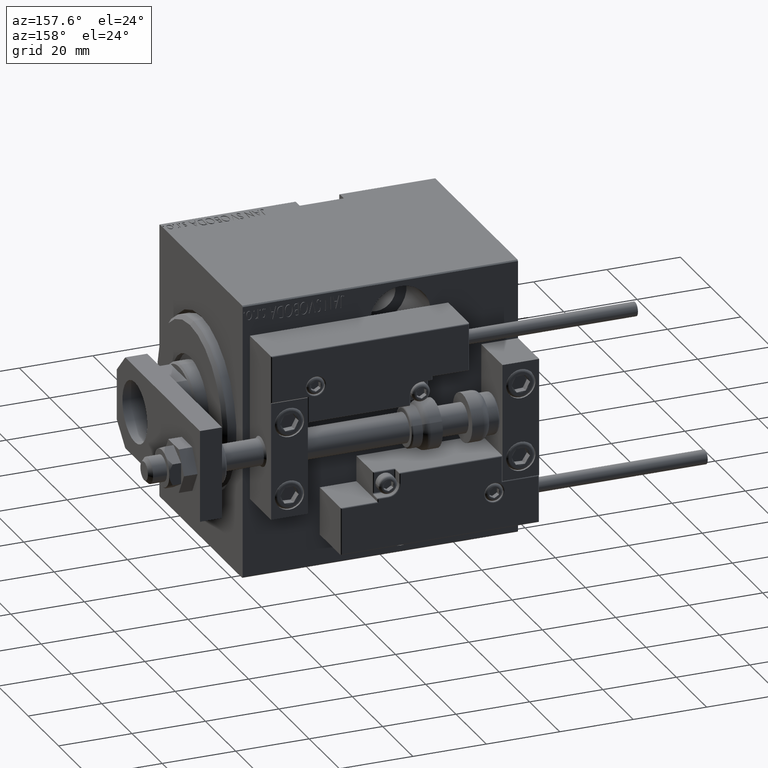
[diagram: clean part render]
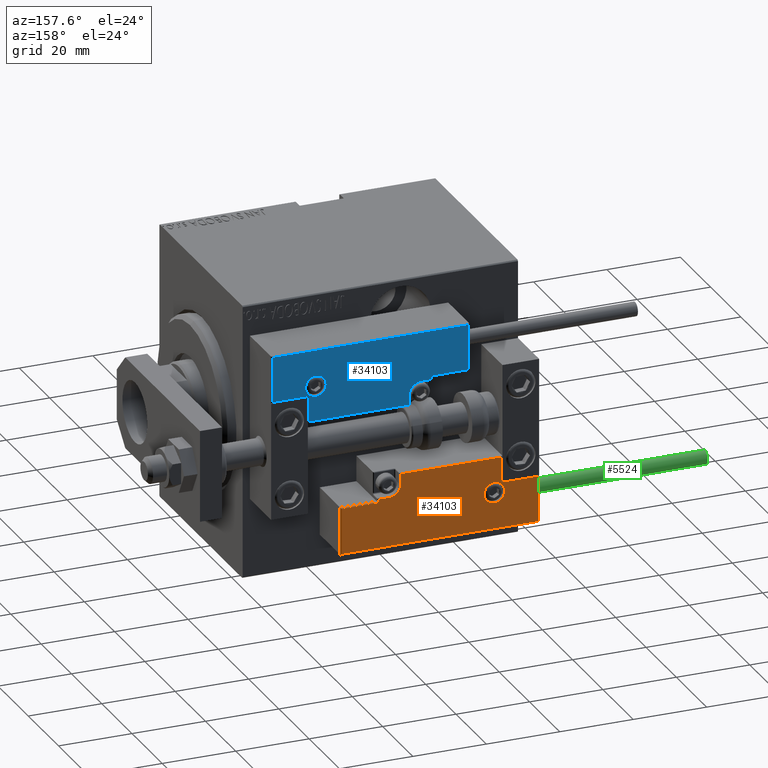
[diagram: same view with three faces highlighted in distinct colors, each labeled with its STEP entity id]
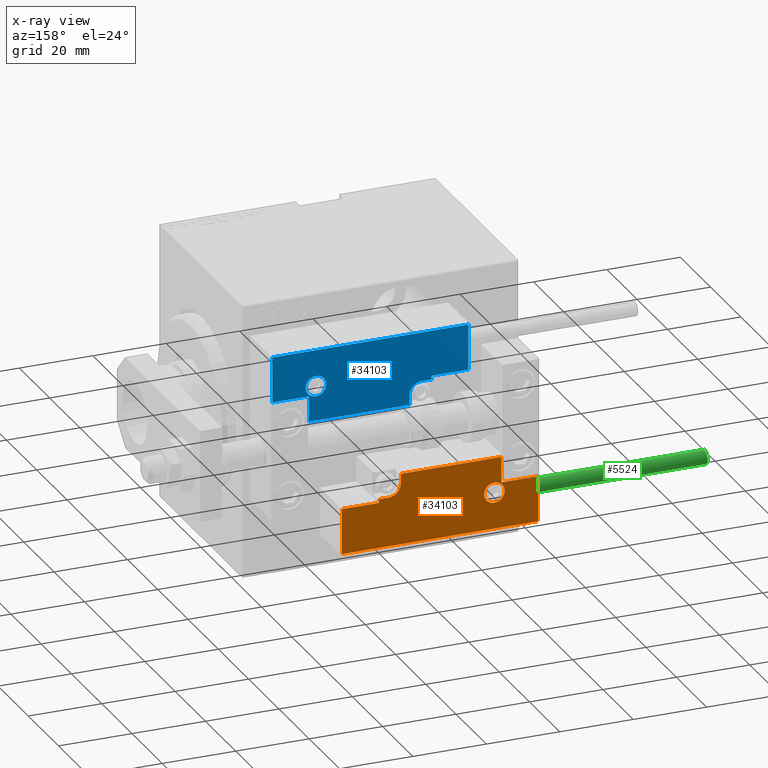
[diagram: x-ray of the same camera — body ghosted, the three highlighted faces saturated]
A machine part, auxiliary view with three faces highlighted in distinct colors.
The next image is the same camera in x-ray (body ghosted, the three faces saturated) — at least one of them is partly hidden behind the body in this view.
Their STEP definitions:

[orange] entity #34103 — the highlighted planar face has unit normal (-0, 1, 0).
#643 = LINE ( 'NONE', #16136, #30499 ) ;
#777 = LINE ( 'NONE', #16022, #14081 ) ;
#1418 = CARTESIAN_POINT ( 'NONE',  ( 16.69999999999999929, 7.300000000000009592, 14.00000000000000000 ) ) ;
#1567 = DIRECTION ( 'NONE',  ( 0.000000000000000000, -0.000000000000000000, -1.000000000000000000 ) ) ;
#2433 = CARTESIAN_POINT ( 'NONE',  ( 10.69999999999999929, 3.000000000000003109, 14.00000000000000000 ) ) ;
#2657 = EDGE_CURVE ( 'NONE', #7735, #7170, #11064, .T. ) ;
#2773 = VECTOR ( 'NONE', #7342, 1000.000000000000000 ) ;
#2995 = ORIENTED_EDGE ( 'NONE', *, *, #23505, .T. ) ;
#3315 = EDGE_CURVE ( 'NONE', #17456, #13904, #29964, .T. ) ;
#3720 = DIRECTION ( 'NONE',  ( 1.000000000000000000, 0.000000000000000000, 0.000000000000000000 ) ) ;
#3875 = EDGE_CURVE ( 'NONE', #46154, #44638, #26856, .T. ) ;
#5206 = CARTESIAN_POINT ( 'NONE',  ( 16.69999999999999929, 6.300000000000003375, 14.00000000000000000 ) ) ;
#5769 = AXIS2_PLACEMENT_3D ( 'NONE', #21556, #44849, #3720 ) ;
#6592 = CARTESIAN_POINT ( 'NONE',  ( -16.69999999999999218, 0.3000000000000032085, 14.00000000000000000 ) ) ;
#7170 = VERTEX_POINT ( 'NONE', #42057 ) ;
#7342 = DIRECTION ( 'NONE',  ( 9.912705577010318647E-16, 1.000000000000000000, 0.000000000000000000 ) ) ;
#7735 = VERTEX_POINT ( 'NONE', #15135 ) ;
#7762 = EDGE_CURVE ( 'NONE', #13904, #18127, #44464, .T. ) ;
#8341 = CARTESIAN_POINT ( 'NONE',  ( 17.00000000000000000, 6.300000000000003375, 14.00000000000000000 ) ) ;
#8709 = EDGE_CURVE ( 'NONE', #16766, #48866, #32841, .T. ) ;
#9475 = ORIENTED_EDGE ( 'NONE', *, *, #3875, .T. ) ;
#9710 = CARTESIAN_POINT ( 'NONE',  ( 26.70000000000006324, 20.00000000000001776, 14.00000000000000000 ) ) ;
#11064 = CIRCLE ( 'NONE', #47836, 2.800000000000000266 ) ;
#11109 = DIRECTION ( 'NONE',  ( -1.000000000000000000, 6.424901762877063495E-17, -0.000000000000000000 ) ) ;
#12894 = CARTESIAN_POINT ( 'NONE',  ( 26.70000000000006324, 7.300000000000007816, 14.00000000000000000 ) ) ;
#13714 = LINE ( 'NONE', #9710, #19141 ) ;
#13904 = VERTEX_POINT ( 'NONE', #22230 ) ;
#13958 = VERTEX_POINT ( 'NONE', #41289 ) ;
#14081 = VECTOR ( 'NONE', #49001, 1000.000000000000000 ) ;
#14263 = AXIS2_PLACEMENT_3D ( 'NONE', #36473, #43229, #39238 ) ;
#15135 = CARTESIAN_POINT ( 'NONE',  ( -17.59999999999994813, 9.800000000000004263, 14.00000000000000000 ) ) ;
#15165 = EDGE_CURVE ( 'NONE', #7170, #7735, #27336, .T. ) ;
#15761 = EDGE_CURVE ( 'NONE', #39027, #16766, #643, .T. ) ;
#15892 = DIRECTION ( 'NONE',  ( -8.006416042969869188E-16, -1.000000000000000000, 0.000000000000000000 ) ) ;
#16022 = CARTESIAN_POINT ( 'NONE',  ( -16.69999999999999218, 3.252606517456513302E-15, 14.00000000000000000 ) ) ;
#16136 = CARTESIAN_POINT ( 'NONE',  ( -26.69999999999994600, 7.000000000000005329, 14.00000000000000000 ) ) ;
#16766 = VERTEX_POINT ( 'NONE', #47016 ) ;
#17456 = VERTEX_POINT ( 'NONE', #6592 ) ;
#18127 = VERTEX_POINT ( 'NONE', #2433 ) ;
#18146 = CARTESIAN_POINT ( 'NONE',  ( 10.69999999999999929, 3.000000000000003109, 14.00000000000000000 ) ) ;
#18878 = VECTOR ( 'NONE', #24831, 1000.000000000000000 ) ;
#19064 = VECTOR ( 'NONE', #33453, 1000.000000000000000 ) ;
#19123 = DIRECTION ( 'NONE',  ( 1.000000000000000000, 0.000000000000000000, 0.000000000000000000 ) ) ;
#19141 = VECTOR ( 'NONE', #36503, 1000.000000000000000 ) ;
#19230 = ORIENTED_EDGE ( 'NONE', *, *, #2657, .T. ) ;
#19637 = EDGE_LOOP ( 'NONE', ( #35657, #36449, #24720, #44991, #27261, #9475, #2995, #30971, #24636, #40219, #27434 ) ) ;
#20432 = FACE_BOUND ( 'NONE', #30582, .T. ) ;
#20685 = FACE_OUTER_BOUND ( 'NONE', #19637, .T. ) ;
#21030 = DIRECTION ( 'NONE',  ( 1.000000000000000000, 0.000000000000000000, 0.000000000000000000 ) ) ;
#21270 = ORIENTED_EDGE ( 'NONE', *, *, #15165, .T. ) ;
#21556 = CARTESIAN_POINT ( 'NONE',  ( -14.79999999999994920, 9.800000000000004263, 14.00000000000000000 ) ) ;
#22164 = DIRECTION ( 'NONE',  ( 1.000000000000000000, -0.000000000000000000, 0.000000000000000000 ) ) ;
#22230 = CARTESIAN_POINT ( 'NONE',  ( 10.69999999999999929, 0.3000000000000032085, 14.00000000000000000 ) ) ;
#22644 = CIRCLE ( 'NONE', #41868, 3.299999999999997158 ) ;
#22661 = CARTESIAN_POINT ( 'NONE',  ( -16.69999999999999218, 7.300000000000003375, 14.00000000000000000 ) ) ;
#23505 = EDGE_CURVE ( 'NONE', #44638, #46635, #28600, .T. ) ;
#23945 = PLANE ( 'NONE',  #14263 ) ;
#24062 = EDGE_CURVE ( 'NONE', #46635, #34782, #13714, .T. ) ;
#24296 = DIRECTION ( 'NONE',  ( 0.000000000000000000, -0.000000000000000000, -1.000000000000000000 ) ) ;
#24636 = ORIENTED_EDGE ( 'NONE', *, *, #46719, .T. ) ;
#24720 = ORIENTED_EDGE ( 'NONE', *, *, #7762, .T. ) ;
#24831 = DIRECTION ( 'NONE',  ( 1.000000000000000000, -1.734723475976796001E-16, 0.000000000000000000 ) ) ;
#25880 = CARTESIAN_POINT ( 'NONE',  ( -26.99999999999993605, 19.70000000000002061, 14.00000000000000000 ) ) ;
#26633 = LINE ( 'NONE', #8341, #34080 ) ;
#26856 = LINE ( 'NONE', #34871, #2773 ) ;
#27261 = ORIENTED_EDGE ( 'NONE', *, *, #43625, .T. ) ;
#27336 = CIRCLE ( 'NONE', #5769, 2.800000000000000266 ) ;
#27434 = ORIENTED_EDGE ( 'NONE', *, *, #8709, .T. ) ;
#28600 = LINE ( 'NONE', #48121, #18878 ) ;
#29964 = LINE ( 'NONE', #37962, #42718 ) ;
#30062 = DIRECTION ( 'NONE',  ( 1.000000000000000000, -1.734723475976815230E-16, 0.000000000000000000 ) ) ;
#30499 = VECTOR ( 'NONE', #15892, 1000.000000000000000 ) ;
#30582 = EDGE_LOOP ( 'NONE', ( #21270, #19230 ) ) ;
#30971 = ORIENTED_EDGE ( 'NONE', *, *, #24062, .T. ) ;
#31781 = EDGE_CURVE ( 'NONE', #18127, #13958, #22644, .T. ) ;
#32542 = CARTESIAN_POINT ( 'NONE',  ( 26.70000000000006324, 19.70000000000001705, 14.00000000000000000 ) ) ;
#32841 = LINE ( 'NONE', #37576, #49013 ) ;
#33453 = DIRECTION ( 'NONE',  ( -0.000000000000000000, 1.000000000000000000, -0.000000000000000000 ) ) ;
#34080 = VECTOR ( 'NONE', #37919, 1000.000000000000000 ) ;
#34103 = ADVANCED_FACE ( 'NONE', ( #20432, #20685 ), #23945, .T. ) ;
#34175 = CARTESIAN_POINT ( 'NONE',  ( -14.79999999999994920, 9.800000000000004263, 14.00000000000000000 ) ) ;
#34782 = VERTEX_POINT ( 'NONE', #32542 ) ;
#34871 = CARTESIAN_POINT ( 'NONE',  ( 16.69999999999999929, 7.000000000000009770, 14.00000000000000000 ) ) ;
#35657 = ORIENTED_EDGE ( 'NONE', *, *, #44297, .T. ) ;
#35840 = CARTESIAN_POINT ( 'NONE',  ( 13.99999999999999822, 3.000000000000002665, 14.00000000000000000 ) ) ;
#35967 = CARTESIAN_POINT ( 'NONE',  ( -26.69999999999993534, 19.70000000000002061, 14.00000000000000000 ) ) ;
#36449 = ORIENTED_EDGE ( 'NONE', *, *, #3315, .T. ) ;
#36473 = CARTESIAN_POINT ( 'NONE',  ( 0.000000000000000000, 0.000000000000000000, 14.00000000000000000 ) ) ;
#36503 = DIRECTION ( 'NONE',  ( 0.000000000000000000, 1.000000000000000000, -0.000000000000000000 ) ) ;
#37576 = CARTESIAN_POINT ( 'NONE',  ( -16.99999999999999289, 7.300000000000003375, 14.00000000000000000 ) ) ;
#37919 = DIRECTION ( 'NONE',  ( 1.000000000000000000, 5.782411586589357639E-16, -0.000000000000000000 ) ) ;
#37962 = CARTESIAN_POINT ( 'NONE',  ( 11.00000000000000000, 0.3000000000000032085, 14.00000000000000000 ) ) ;
#39027 = VERTEX_POINT ( 'NONE', #35967 ) ;
#39238 = DIRECTION ( 'NONE',  ( 1.000000000000000000, 0.000000000000000000, 0.000000000000000000 ) ) ;
#40219 = ORIENTED_EDGE ( 'NONE', *, *, #15761, .T. ) ;
#41289 = CARTESIAN_POINT ( 'NONE',  ( 13.99999999999999822, 6.300000000000001599, 14.00000000000000000 ) ) ;
#41387 = VECTOR ( 'NONE', #11109, 1000.000000000000000 ) ;
#41868 = AXIS2_PLACEMENT_3D ( 'NONE', #35840, #24296, #21030 ) ;
#42057 = CARTESIAN_POINT ( 'NONE',  ( -11.99999999999994849, 9.800000000000004263, 14.00000000000000000 ) ) ;
#42718 = VECTOR ( 'NONE', #22164, 1000.000000000000000 ) ;
#43229 = DIRECTION ( 'NONE',  ( -0.000000000000000000, 0.000000000000000000, 1.000000000000000000 ) ) ;
#43625 = EDGE_CURVE ( 'NONE', #13958, #46154, #26633, .T. ) ;
#44297 = EDGE_CURVE ( 'NONE', #48866, #17456, #777, .T. ) ;
#44464 = LINE ( 'NONE', #18146, #19064 ) ;
#44638 = VERTEX_POINT ( 'NONE', #1418 ) ;
#44849 = DIRECTION ( 'NONE',  ( 0.000000000000000000, -0.000000000000000000, -1.000000000000000000 ) ) ;
#44991 = ORIENTED_EDGE ( 'NONE', *, *, #31781, .T. ) ;
#46154 = VERTEX_POINT ( 'NONE', #5206 ) ;
#46635 = VERTEX_POINT ( 'NONE', #12894 ) ;
#46719 = EDGE_CURVE ( 'NONE', #34782, #39027, #48674, .T. ) ;
#47016 = CARTESIAN_POINT ( 'NONE',  ( -26.69999999999994600, 7.300000000000005151, 14.00000000000000000 ) ) ;
#47836 = AXIS2_PLACEMENT_3D ( 'NONE', #34175, #1567, #19123 ) ;
#48121 = CARTESIAN_POINT ( 'NONE',  ( 27.00000000000006395, 7.300000000000007816, 14.00000000000000000 ) ) ;
#48674 = LINE ( 'NONE', #25880, #41387 ) ;
#48866 = VERTEX_POINT ( 'NONE', #22661 ) ;
#49001 = DIRECTION ( 'NONE',  ( 0.000000000000000000, -1.000000000000000000, 0.000000000000000000 ) ) ;
#49013 = VECTOR ( 'NONE', #30062, 1000.000000000000000 ) ;

[blue] entity #34103 — the highlighted planar face has unit normal (0, 1, -0).
#643 = LINE ( 'NONE', #16136, #30499 ) ;
#777 = LINE ( 'NONE', #16022, #14081 ) ;
#1418 = CARTESIAN_POINT ( 'NONE',  ( 16.69999999999999929, 7.300000000000009592, 14.00000000000000000 ) ) ;
#1567 = DIRECTION ( 'NONE',  ( 0.000000000000000000, -0.000000000000000000, -1.000000000000000000 ) ) ;
#2433 = CARTESIAN_POINT ( 'NONE',  ( 10.69999999999999929, 3.000000000000003109, 14.00000000000000000 ) ) ;
#2657 = EDGE_CURVE ( 'NONE', #7735, #7170, #11064, .T. ) ;
#2773 = VECTOR ( 'NONE', #7342, 1000.000000000000000 ) ;
#2995 = ORIENTED_EDGE ( 'NONE', *, *, #23505, .T. ) ;
#3315 = EDGE_CURVE ( 'NONE', #17456, #13904, #29964, .T. ) ;
#3720 = DIRECTION ( 'NONE',  ( 1.000000000000000000, 0.000000000000000000, 0.000000000000000000 ) ) ;
#3875 = EDGE_CURVE ( 'NONE', #46154, #44638, #26856, .T. ) ;
#5206 = CARTESIAN_POINT ( 'NONE',  ( 16.69999999999999929, 6.300000000000003375, 14.00000000000000000 ) ) ;
#5769 = AXIS2_PLACEMENT_3D ( 'NONE', #21556, #44849, #3720 ) ;
#6592 = CARTESIAN_POINT ( 'NONE',  ( -16.69999999999999218, 0.3000000000000032085, 14.00000000000000000 ) ) ;
#7170 = VERTEX_POINT ( 'NONE', #42057 ) ;
#7342 = DIRECTION ( 'NONE',  ( 9.912705577010318647E-16, 1.000000000000000000, 0.000000000000000000 ) ) ;
#7735 = VERTEX_POINT ( 'NONE', #15135 ) ;
#7762 = EDGE_CURVE ( 'NONE', #13904, #18127, #44464, .T. ) ;
#8341 = CARTESIAN_POINT ( 'NONE',  ( 17.00000000000000000, 6.300000000000003375, 14.00000000000000000 ) ) ;
#8709 = EDGE_CURVE ( 'NONE', #16766, #48866, #32841, .T. ) ;
#9475 = ORIENTED_EDGE ( 'NONE', *, *, #3875, .T. ) ;
#9710 = CARTESIAN_POINT ( 'NONE',  ( 26.70000000000006324, 20.00000000000001776, 14.00000000000000000 ) ) ;
#11064 = CIRCLE ( 'NONE', #47836, 2.800000000000000266 ) ;
#11109 = DIRECTION ( 'NONE',  ( -1.000000000000000000, 6.424901762877063495E-17, -0.000000000000000000 ) ) ;
#12894 = CARTESIAN_POINT ( 'NONE',  ( 26.70000000000006324, 7.300000000000007816, 14.00000000000000000 ) ) ;
#13714 = LINE ( 'NONE', #9710, #19141 ) ;
#13904 = VERTEX_POINT ( 'NONE', #22230 ) ;
#13958 = VERTEX_POINT ( 'NONE', #41289 ) ;
#14081 = VECTOR ( 'NONE', #49001, 1000.000000000000000 ) ;
#14263 = AXIS2_PLACEMENT_3D ( 'NONE', #36473, #43229, #39238 ) ;
#15135 = CARTESIAN_POINT ( 'NONE',  ( -17.59999999999994813, 9.800000000000004263, 14.00000000000000000 ) ) ;
#15165 = EDGE_CURVE ( 'NONE', #7170, #7735, #27336, .T. ) ;
#15761 = EDGE_CURVE ( 'NONE', #39027, #16766, #643, .T. ) ;
#15892 = DIRECTION ( 'NONE',  ( -8.006416042969869188E-16, -1.000000000000000000, 0.000000000000000000 ) ) ;
#16022 = CARTESIAN_POINT ( 'NONE',  ( -16.69999999999999218, 3.252606517456513302E-15, 14.00000000000000000 ) ) ;
#16136 = CARTESIAN_POINT ( 'NONE',  ( -26.69999999999994600, 7.000000000000005329, 14.00000000000000000 ) ) ;
#16766 = VERTEX_POINT ( 'NONE', #47016 ) ;
#17456 = VERTEX_POINT ( 'NONE', #6592 ) ;
#18127 = VERTEX_POINT ( 'NONE', #2433 ) ;
#18146 = CARTESIAN_POINT ( 'NONE',  ( 10.69999999999999929, 3.000000000000003109, 14.00000000000000000 ) ) ;
#18878 = VECTOR ( 'NONE', #24831, 1000.000000000000000 ) ;
#19064 = VECTOR ( 'NONE', #33453, 1000.000000000000000 ) ;
#19123 = DIRECTION ( 'NONE',  ( 1.000000000000000000, 0.000000000000000000, 0.000000000000000000 ) ) ;
#19141 = VECTOR ( 'NONE', #36503, 1000.000000000000000 ) ;
#19230 = ORIENTED_EDGE ( 'NONE', *, *, #2657, .T. ) ;
#19637 = EDGE_LOOP ( 'NONE', ( #35657, #36449, #24720, #44991, #27261, #9475, #2995, #30971, #24636, #40219, #27434 ) ) ;
#20432 = FACE_BOUND ( 'NONE', #30582, .T. ) ;
#20685 = FACE_OUTER_BOUND ( 'NONE', #19637, .T. ) ;
#21030 = DIRECTION ( 'NONE',  ( 1.000000000000000000, 0.000000000000000000, 0.000000000000000000 ) ) ;
#21270 = ORIENTED_EDGE ( 'NONE', *, *, #15165, .T. ) ;
#21556 = CARTESIAN_POINT ( 'NONE',  ( -14.79999999999994920, 9.800000000000004263, 14.00000000000000000 ) ) ;
#22164 = DIRECTION ( 'NONE',  ( 1.000000000000000000, -0.000000000000000000, 0.000000000000000000 ) ) ;
#22230 = CARTESIAN_POINT ( 'NONE',  ( 10.69999999999999929, 0.3000000000000032085, 14.00000000000000000 ) ) ;
#22644 = CIRCLE ( 'NONE', #41868, 3.299999999999997158 ) ;
#22661 = CARTESIAN_POINT ( 'NONE',  ( -16.69999999999999218, 7.300000000000003375, 14.00000000000000000 ) ) ;
#23505 = EDGE_CURVE ( 'NONE', #44638, #46635, #28600, .T. ) ;
#23945 = PLANE ( 'NONE',  #14263 ) ;
#24062 = EDGE_CURVE ( 'NONE', #46635, #34782, #13714, .T. ) ;
#24296 = DIRECTION ( 'NONE',  ( 0.000000000000000000, -0.000000000000000000, -1.000000000000000000 ) ) ;
#24636 = ORIENTED_EDGE ( 'NONE', *, *, #46719, .T. ) ;
#24720 = ORIENTED_EDGE ( 'NONE', *, *, #7762, .T. ) ;
#24831 = DIRECTION ( 'NONE',  ( 1.000000000000000000, -1.734723475976796001E-16, 0.000000000000000000 ) ) ;
#25880 = CARTESIAN_POINT ( 'NONE',  ( -26.99999999999993605, 19.70000000000002061, 14.00000000000000000 ) ) ;
#26633 = LINE ( 'NONE', #8341, #34080 ) ;
#26856 = LINE ( 'NONE', #34871, #2773 ) ;
#27261 = ORIENTED_EDGE ( 'NONE', *, *, #43625, .T. ) ;
#27336 = CIRCLE ( 'NONE', #5769, 2.800000000000000266 ) ;
#27434 = ORIENTED_EDGE ( 'NONE', *, *, #8709, .T. ) ;
#28600 = LINE ( 'NONE', #48121, #18878 ) ;
#29964 = LINE ( 'NONE', #37962, #42718 ) ;
#30062 = DIRECTION ( 'NONE',  ( 1.000000000000000000, -1.734723475976815230E-16, 0.000000000000000000 ) ) ;
#30499 = VECTOR ( 'NONE', #15892, 1000.000000000000000 ) ;
#30582 = EDGE_LOOP ( 'NONE', ( #21270, #19230 ) ) ;
#30971 = ORIENTED_EDGE ( 'NONE', *, *, #24062, .T. ) ;
#31781 = EDGE_CURVE ( 'NONE', #18127, #13958, #22644, .T. ) ;
#32542 = CARTESIAN_POINT ( 'NONE',  ( 26.70000000000006324, 19.70000000000001705, 14.00000000000000000 ) ) ;
#32841 = LINE ( 'NONE', #37576, #49013 ) ;
#33453 = DIRECTION ( 'NONE',  ( -0.000000000000000000, 1.000000000000000000, -0.000000000000000000 ) ) ;
#34080 = VECTOR ( 'NONE', #37919, 1000.000000000000000 ) ;
#34103 = ADVANCED_FACE ( 'NONE', ( #20432, #20685 ), #23945, .T. ) ;
#34175 = CARTESIAN_POINT ( 'NONE',  ( -14.79999999999994920, 9.800000000000004263, 14.00000000000000000 ) ) ;
#34782 = VERTEX_POINT ( 'NONE', #32542 ) ;
#34871 = CARTESIAN_POINT ( 'NONE',  ( 16.69999999999999929, 7.000000000000009770, 14.00000000000000000 ) ) ;
#35657 = ORIENTED_EDGE ( 'NONE', *, *, #44297, .T. ) ;
#35840 = CARTESIAN_POINT ( 'NONE',  ( 13.99999999999999822, 3.000000000000002665, 14.00000000000000000 ) ) ;
#35967 = CARTESIAN_POINT ( 'NONE',  ( -26.69999999999993534, 19.70000000000002061, 14.00000000000000000 ) ) ;
#36449 = ORIENTED_EDGE ( 'NONE', *, *, #3315, .T. ) ;
#36473 = CARTESIAN_POINT ( 'NONE',  ( 0.000000000000000000, 0.000000000000000000, 14.00000000000000000 ) ) ;
#36503 = DIRECTION ( 'NONE',  ( 0.000000000000000000, 1.000000000000000000, -0.000000000000000000 ) ) ;
#37576 = CARTESIAN_POINT ( 'NONE',  ( -16.99999999999999289, 7.300000000000003375, 14.00000000000000000 ) ) ;
#37919 = DIRECTION ( 'NONE',  ( 1.000000000000000000, 5.782411586589357639E-16, -0.000000000000000000 ) ) ;
#37962 = CARTESIAN_POINT ( 'NONE',  ( 11.00000000000000000, 0.3000000000000032085, 14.00000000000000000 ) ) ;
#39027 = VERTEX_POINT ( 'NONE', #35967 ) ;
#39238 = DIRECTION ( 'NONE',  ( 1.000000000000000000, 0.000000000000000000, 0.000000000000000000 ) ) ;
#40219 = ORIENTED_EDGE ( 'NONE', *, *, #15761, .T. ) ;
#41289 = CARTESIAN_POINT ( 'NONE',  ( 13.99999999999999822, 6.300000000000001599, 14.00000000000000000 ) ) ;
#41387 = VECTOR ( 'NONE', #11109, 1000.000000000000000 ) ;
#41868 = AXIS2_PLACEMENT_3D ( 'NONE', #35840, #24296, #21030 ) ;
#42057 = CARTESIAN_POINT ( 'NONE',  ( -11.99999999999994849, 9.800000000000004263, 14.00000000000000000 ) ) ;
#42718 = VECTOR ( 'NONE', #22164, 1000.000000000000000 ) ;
#43229 = DIRECTION ( 'NONE',  ( -0.000000000000000000, 0.000000000000000000, 1.000000000000000000 ) ) ;
#43625 = EDGE_CURVE ( 'NONE', #13958, #46154, #26633, .T. ) ;
#44297 = EDGE_CURVE ( 'NONE', #48866, #17456, #777, .T. ) ;
#44464 = LINE ( 'NONE', #18146, #19064 ) ;
#44638 = VERTEX_POINT ( 'NONE', #1418 ) ;
#44849 = DIRECTION ( 'NONE',  ( 0.000000000000000000, -0.000000000000000000, -1.000000000000000000 ) ) ;
#44991 = ORIENTED_EDGE ( 'NONE', *, *, #31781, .T. ) ;
#46154 = VERTEX_POINT ( 'NONE', #5206 ) ;
#46635 = VERTEX_POINT ( 'NONE', #12894 ) ;
#46719 = EDGE_CURVE ( 'NONE', #34782, #39027, #48674, .T. ) ;
#47016 = CARTESIAN_POINT ( 'NONE',  ( -26.69999999999994600, 7.300000000000005151, 14.00000000000000000 ) ) ;
#47836 = AXIS2_PLACEMENT_3D ( 'NONE', #34175, #1567, #19123 ) ;
#48121 = CARTESIAN_POINT ( 'NONE',  ( 27.00000000000006395, 7.300000000000007816, 14.00000000000000000 ) ) ;
#48674 = LINE ( 'NONE', #25880, #41387 ) ;
#48866 = VERTEX_POINT ( 'NONE', #22661 ) ;
#49001 = DIRECTION ( 'NONE',  ( 0.000000000000000000, -1.000000000000000000, 0.000000000000000000 ) ) ;
#49013 = VECTOR ( 'NONE', #30062, 1000.000000000000000 ) ;

[green] entity #5524 — the highlighted cylindrical surface (edge-blend (fillet) strip) has radius 1.9 mm, axis along (1, -0, 0).
#2076 = DIRECTION ( 'NONE',  ( 0.000000000000000000, 0.000000000000000000, 1.000000000000000000 ) ) ;
#2798 = ORIENTED_EDGE ( 'NONE', *, *, #5054, .T. ) ;
#3995 = ORIENTED_EDGE ( 'NONE', *, *, #20126, .T. ) ;
#5054 = EDGE_CURVE ( 'NONE', #34081, #40421, #22793, .T. ) ;
#5524 = ADVANCED_FACE ( 'NONE', ( #19478 ), #31524, .T. ) ;
#7536 = DIRECTION ( 'NONE',  ( -0.000000000000000000, -0.000000000000000000, -1.000000000000000000 ) ) ;
#8502 = DIRECTION ( 'NONE',  ( -0.000000000000000000, -0.000000000000000000, -1.000000000000000000 ) ) ;
#10816 = VERTEX_POINT ( 'NONE', #19325 ) ;
#12584 = CARTESIAN_POINT ( 'NONE',  ( 0.000000000000000000, 0.000000000000000000, 0.000000000000000000 ) ) ;
#13009 = AXIS2_PLACEMENT_3D ( 'NONE', #27755, #34277, #15242 ) ;
#13665 = EDGE_CURVE ( 'NONE', #38716, #40421, #34807, .T. ) ;
#15242 = DIRECTION ( 'NONE',  ( -1.000000000000000000, 0.000000000000000000, 0.000000000000000000 ) ) ;
#15537 = LINE ( 'NONE', #42340, #22250 ) ;
#15973 = CARTESIAN_POINT ( 'NONE',  ( -1.899999999999999467, 0.000000000000000000, 48.00000000000000000 ) ) ;
#19325 = CARTESIAN_POINT ( 'NONE',  ( 1.899999999999999467, 2.326828918379970872E-16, 48.00000000000000000 ) ) ;
#19478 = FACE_OUTER_BOUND ( 'NONE', #48817, .T. ) ;
#20126 = EDGE_CURVE ( 'NONE', #10816, #34081, #15537, .T. ) ;
#22250 = VECTOR ( 'NONE', #7536, 1000.000000000000000 ) ;
#22793 = CIRCLE ( 'NONE', #35634, 1.899999999999999467 ) ;
#26196 = EDGE_CURVE ( 'NONE', #10816, #38716, #28074, .T. ) ;
#27755 = CARTESIAN_POINT ( 'NONE',  ( 0.000000000000000000, 0.000000000000000000, 48.00000000000000000 ) ) ;
#28074 = CIRCLE ( 'NONE', #46435, 1.899999999999999467 ) ;
#31524 = CYLINDRICAL_SURFACE ( 'NONE', #13009, 1.899999999999999467 ) ;
#32114 = VECTOR ( 'NONE', #8502, 1000.000000000000000 ) ;
#33748 = DIRECTION ( 'NONE',  ( 0.000000000000000000, 0.000000000000000000, 1.000000000000000000 ) ) ;
#33979 = ORIENTED_EDGE ( 'NONE', *, *, #13665, .F. ) ;
#34081 = VERTEX_POINT ( 'NONE', #43730 ) ;
#34277 = DIRECTION ( 'NONE',  ( -0.000000000000000000, -0.000000000000000000, -1.000000000000000000 ) ) ;
#34807 = LINE ( 'NONE', #43050, #32114 ) ;
#35634 = AXIS2_PLACEMENT_3D ( 'NONE', #12584, #2076, #47388 ) ;
#38716 = VERTEX_POINT ( 'NONE', #15973 ) ;
#40421 = VERTEX_POINT ( 'NONE', #49036 ) ;
#41122 = ORIENTED_EDGE ( 'NONE', *, *, #26196, .F. ) ;
#42340 = CARTESIAN_POINT ( 'NONE',  ( 1.899999999999999467, 2.326828918379970872E-16, 48.00000000000000000 ) ) ;
#42483 = DIRECTION ( 'NONE',  ( 1.000000000000000000, 0.000000000000000000, 0.000000000000000000 ) ) ;
#43050 = CARTESIAN_POINT ( 'NONE',  ( -1.899999999999999467, 0.000000000000000000, 48.00000000000000000 ) ) ;
#43730 = CARTESIAN_POINT ( 'NONE',  ( 1.899999999999999467, 2.326828918379970872E-16, 0.000000000000000000 ) ) ;
#46233 = CARTESIAN_POINT ( 'NONE',  ( 0.000000000000000000, 0.000000000000000000, 48.00000000000000000 ) ) ;
#46435 = AXIS2_PLACEMENT_3D ( 'NONE', #46233, #33748, #42483 ) ;
#47388 = DIRECTION ( 'NONE',  ( 1.000000000000000000, 0.000000000000000000, 0.000000000000000000 ) ) ;
#48817 = EDGE_LOOP ( 'NONE', ( #41122, #3995, #2798, #33979 ) ) ;
#49036 = CARTESIAN_POINT ( 'NONE',  ( -1.899999999999999467, 0.000000000000000000, 0.000000000000000000 ) ) ;